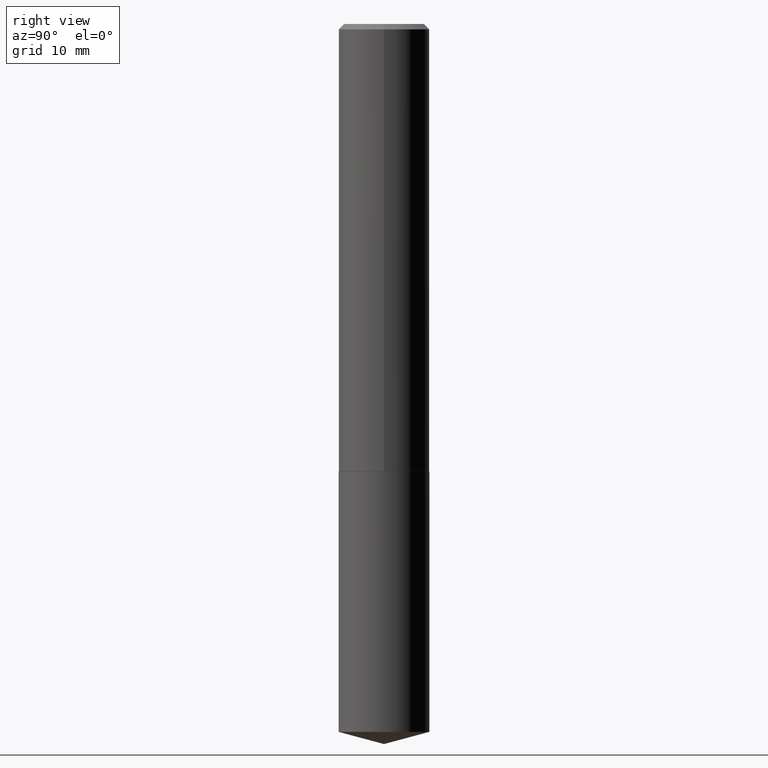
[diagram: clean part render]
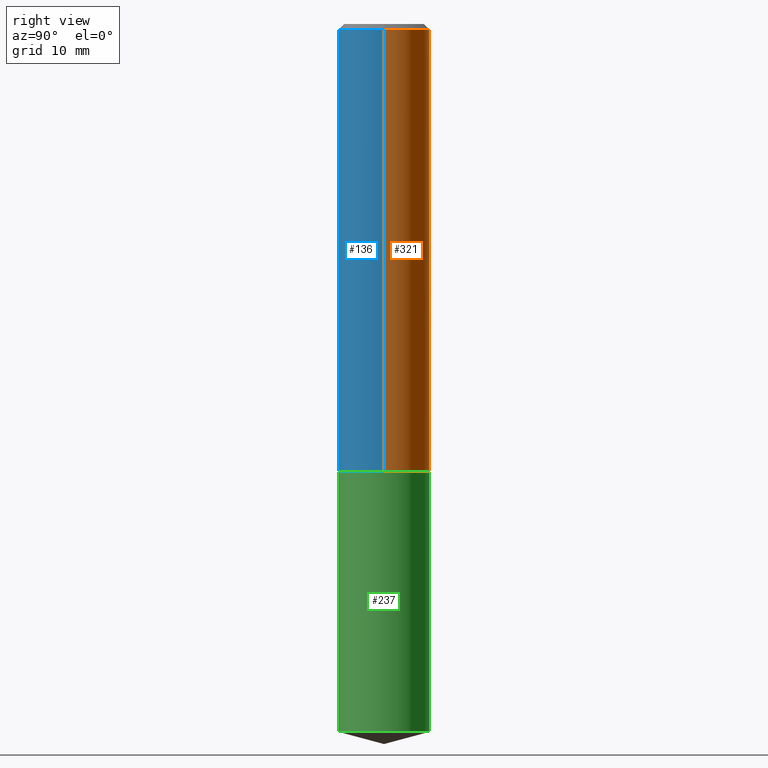
[diagram: same view with three faces highlighted in distinct colors, each labeled with its STEP entity id]
A machine part, right view with three faces highlighted in distinct colors.
Their STEP definitions:

[orange] entity #321 — the highlighted cylindrical surface (partial cylindrical patch) has radius 6.7501 mm, axis along (-0, 0, 1).
#12 = CARTESIAN_POINT ( 'NONE',  ( 6.401259147070212571E-29, -9.139301552555818359E-15, -2.617599999999999927 ) ) ;
#22 = ORIENTED_EDGE ( 'NONE', *, *, #137, .T. ) ;
#24 = VERTEX_POINT ( 'NONE', #390 ) ;
#35 = EDGE_CURVE ( 'NONE', #258, #24, #117, .T. ) ;
#62 = VERTEX_POINT ( 'NONE', #204 ) ;
#63 = CARTESIAN_POINT ( 'NONE',  ( 0.2657500000000001528, -1.855722331595126530E-15, 1.295843978167770573E-29 ) ) ;
#69 = CARTESIAN_POINT ( 'NONE',  ( -0.2657500000000001528, 1.888267320282467329E-15, -1.307207000235242070E-29 ) ) ;
#77 = DIRECTION ( 'NONE',  ( -2.445468806185136597E-29, 3.491481338843145583E-15, 1.000000000000000000 ) ) ;
#105 = DIRECTION ( 'NONE',  ( -2.445468806185136877E-29, 3.491481338843145188E-15, 1.000000000000000000 ) ) ;
#109 = ORIENTED_EDGE ( 'NONE', *, *, #35, .F. ) ;
#117 = LINE ( 'NONE', #63, #181 ) ;
#127 = DIRECTION ( 'NONE',  ( -2.445468806185136597E-29, 3.491481338843145583E-15, 1.000000000000000000 ) ) ;
#130 = CARTESIAN_POINT ( 'NONE',  ( -0.2657499999999999862, -2.735937851914864823E-15, -0.03125000000000020123 ) ) ;
#137 = EDGE_CURVE ( 'NONE', #258, #62, #370, .T. ) ;
#148 = EDGE_CURVE ( 'NONE', #24, #196, #287, .T. ) ;
#149 = DIRECTION ( 'NONE',  ( -2.445468806185136877E-29, 3.491481338843145188E-15, 1.000000000000000000 ) ) ;
#159 = DIRECTION ( 'NONE',  ( 1.000000000000000000, -6.982962677686262766E-15, 0.000000000000000000 ) ) ;
#166 = CYLINDRICAL_SURFACE ( 'NONE', #348, 0.2657500000000001528 ) ;
#171 = EDGE_CURVE ( 'NONE', #62, #196, #272, .T. ) ;
#181 = VECTOR ( 'NONE', #149, 39.37007874015748143 ) ;
#187 = CARTESIAN_POINT ( 'NONE',  ( 0.2657500000000003193, -1.099502388415094371E-14, -2.617599999999999927 ) ) ;
#192 = DIRECTION ( 'NONE',  ( 1.000000000000000000, -6.982962677686266711E-15, 4.876176775795935232E-29 ) ) ;
#195 = ORIENTED_EDGE ( 'NONE', *, *, #148, .F. ) ;
#196 = VERTEX_POINT ( 'NONE', #130 ) ;
#200 = AXIS2_PLACEMENT_3D ( 'NONE', #268, #77, #339 ) ;
#204 = CARTESIAN_POINT ( 'NONE',  ( -0.2657500000000003193, -7.251034232273349452E-15, -2.617599999999999927 ) ) ;
#258 = VERTEX_POINT ( 'NONE', #187 ) ;
#260 = ORIENTED_EDGE ( 'NONE', *, *, #171, .T. ) ;
#268 = CARTESIAN_POINT ( 'NONE',  ( 7.642090019328601786E-31, -1.091087918388490144E-16, -0.03125000000000020123 ) ) ;
#272 = LINE ( 'NONE', #69, #369 ) ;
#287 = CIRCLE ( 'NONE', #200, 0.2657499999999999862 ) ;
#313 = AXIS2_PLACEMENT_3D ( 'NONE', #12, #127, #159 ) ;
#321 = ADVANCED_FACE ( 'NONE', ( #374 ), #166, .T. ) ;
#339 = DIRECTION ( 'NONE',  ( 1.000000000000000000, -6.982962677686266711E-15, 0.000000000000000000 ) ) ;
#340 = DIRECTION ( 'NONE',  ( -2.445468806185136597E-29, 3.491481338843145583E-15, 1.000000000000000000 ) ) ;
#348 = AXIS2_PLACEMENT_3D ( 'NONE', #372, #340, #192 ) ;
#369 = VECTOR ( 'NONE', #105, 39.37007874015748143 ) ;
#370 = CIRCLE ( 'NONE', #313, 0.2657500000000003193 ) ;
#372 = CARTESIAN_POINT ( 'NONE',  ( 0.000000000000000000, 0.000000000000000000, 0.000000000000000000 ) ) ;
#373 = EDGE_LOOP ( 'NONE', ( #22, #260, #195, #109 ) ) ;
#374 = FACE_OUTER_BOUND ( 'NONE', #373, .T. ) ;
#390 = CARTESIAN_POINT ( 'NONE',  ( 0.2657499999999999862, -1.964831123433974447E-15, -0.03125000000000020123 ) ) ;

[blue] entity #136 — the highlighted cylindrical surface (partial cylindrical patch) has radius 6.7501 mm, axis along (-0, 0, 1).
#3 = EDGE_LOOP ( 'NONE', ( #33, #278, #81, #119 ) ) ;
#15 = DIRECTION ( 'NONE',  ( -2.445468806185136597E-29, 3.491481338843145583E-15, 1.000000000000000000 ) ) ;
#20 = EDGE_CURVE ( 'NONE', #196, #24, #80, .T. ) ;
#24 = VERTEX_POINT ( 'NONE', #390 ) ;
#28 = DIRECTION ( 'NONE',  ( 1.000000000000000000, -6.982962677686262766E-15, 0.000000000000000000 ) ) ;
#31 = DIRECTION ( 'NONE',  ( -2.445468806185136597E-29, 3.491481338843145583E-15, 1.000000000000000000 ) ) ;
#33 = ORIENTED_EDGE ( 'NONE', *, *, #171, .F. ) ;
#35 = EDGE_CURVE ( 'NONE', #258, #24, #117, .T. ) ;
#62 = VERTEX_POINT ( 'NONE', #204 ) ;
#63 = CARTESIAN_POINT ( 'NONE',  ( 0.2657500000000001528, -1.855722331595126530E-15, 1.295843978167770573E-29 ) ) ;
#69 = CARTESIAN_POINT ( 'NONE',  ( -0.2657500000000001528, 1.888267320282467329E-15, -1.307207000235242070E-29 ) ) ;
#75 = AXIS2_PLACEMENT_3D ( 'NONE', #325, #31, #146 ) ;
#80 = CIRCLE ( 'NONE', #75, 0.2657499999999999862 ) ;
#81 = ORIENTED_EDGE ( 'NONE', *, *, #35, .T. ) ;
#105 = DIRECTION ( 'NONE',  ( -2.445468806185136877E-29, 3.491481338843145188E-15, 1.000000000000000000 ) ) ;
#108 = AXIS2_PLACEMENT_3D ( 'NONE', #371, #15, #219 ) ;
#117 = LINE ( 'NONE', #63, #181 ) ;
#119 = ORIENTED_EDGE ( 'NONE', *, *, #20, .F. ) ;
#130 = CARTESIAN_POINT ( 'NONE',  ( -0.2657499999999999862, -2.735937851914864823E-15, -0.03125000000000020123 ) ) ;
#136 = ADVANCED_FACE ( 'NONE', ( #365 ), #240, .T. ) ;
#146 = DIRECTION ( 'NONE',  ( 1.000000000000000000, -6.982962677686266711E-15, 0.000000000000000000 ) ) ;
#149 = DIRECTION ( 'NONE',  ( -2.445468806185136877E-29, 3.491481338843145188E-15, 1.000000000000000000 ) ) ;
#171 = EDGE_CURVE ( 'NONE', #62, #196, #272, .T. ) ;
#173 = DIRECTION ( 'NONE',  ( -2.445468806185136597E-29, 3.491481338843145583E-15, 1.000000000000000000 ) ) ;
#181 = VECTOR ( 'NONE', #149, 39.37007874015748143 ) ;
#182 = AXIS2_PLACEMENT_3D ( 'NONE', #290, #173, #28 ) ;
#187 = CARTESIAN_POINT ( 'NONE',  ( 0.2657500000000003193, -1.099502388415094371E-14, -2.617599999999999927 ) ) ;
#196 = VERTEX_POINT ( 'NONE', #130 ) ;
#204 = CARTESIAN_POINT ( 'NONE',  ( -0.2657500000000003193, -7.251034232273349452E-15, -2.617599999999999927 ) ) ;
#219 = DIRECTION ( 'NONE',  ( 1.000000000000000000, -6.982962677686266711E-15, 4.876176775795935232E-29 ) ) ;
#240 = CYLINDRICAL_SURFACE ( 'NONE', #108, 0.2657500000000001528 ) ;
#258 = VERTEX_POINT ( 'NONE', #187 ) ;
#272 = LINE ( 'NONE', #69, #369 ) ;
#278 = ORIENTED_EDGE ( 'NONE', *, *, #383, .T. ) ;
#290 = CARTESIAN_POINT ( 'NONE',  ( 6.401259147070212571E-29, -9.139301552555818359E-15, -2.617599999999999927 ) ) ;
#325 = CARTESIAN_POINT ( 'NONE',  ( 7.642090019328601786E-31, -1.091087918388490144E-16, -0.03125000000000020123 ) ) ;
#365 = FACE_OUTER_BOUND ( 'NONE', #3, .T. ) ;
#369 = VECTOR ( 'NONE', #105, 39.37007874015748143 ) ;
#371 = CARTESIAN_POINT ( 'NONE',  ( 0.000000000000000000, 0.000000000000000000, 0.000000000000000000 ) ) ;
#378 = CIRCLE ( 'NONE', #182, 0.2657500000000003193 ) ;
#383 = EDGE_CURVE ( 'NONE', #62, #258, #378, .T. ) ;
#390 = CARTESIAN_POINT ( 'NONE',  ( 0.2657499999999999862, -1.964831123433974447E-15, -0.03125000000000020123 ) ) ;

[green] entity #237 — the highlighted cylindrical surface (partial cylindrical patch) has radius 6.75 mm, axis along (-0, 0, 1).
#18 = VERTEX_POINT ( 'NONE', #172 ) ;
#26 = CARTESIAN_POINT ( 'NONE',  ( -1.855722331595061055E-15, -0.2657500000000091456, -2.618099999999999206 ) ) ;
#32 = DIRECTION ( 'NONE',  ( -2.445613187087085095E-29, 3.491274577173904223E-15, 1.000000000000000000 ) ) ;
#42 = DIRECTION ( 'NONE',  ( -2.445613187087085095E-29, 3.491274577173904618E-15, 1.000000000000000000 ) ) ;
#46 = CARTESIAN_POINT ( 'NONE',  ( 6.402481881473307615E-29, -9.141047293225240652E-15, -2.618100000000000094 ) ) ;
#48 = EDGE_CURVE ( 'NONE', #51, #198, #327, .T. ) ;
#51 = VERTEX_POINT ( 'NONE', #26 ) ;
#52 = EDGE_LOOP ( 'NONE', ( #175, #83, #201, #121 ) ) ;
#72 = CARTESIAN_POINT ( 'NONE',  ( 1.012786611242790228E-28, -1.445927967944650304E-14, -4.141392502111430396 ) ) ;
#76 = DIRECTION ( 'NONE',  ( -2.445613187087085095E-29, 3.491274577173904618E-15, 1.000000000000000000 ) ) ;
#83 = ORIENTED_EDGE ( 'NONE', *, *, #113, .T. ) ;
#100 = CARTESIAN_POINT ( 'NONE',  ( 1.888267320282567515E-15, 0.2657499999999856088, -4.141392502111431284 ) ) ;
#113 = EDGE_CURVE ( 'NONE', #222, #198, #216, .T. ) ;
#121 = ORIENTED_EDGE ( 'NONE', *, *, #380, .F. ) ;
#123 = CARTESIAN_POINT ( 'NONE',  ( 1.888267320282530044E-15, 0.2657499999999908269, -2.618100000000001426 ) ) ;
#133 = VECTOR ( 'NONE', #299, 39.37007874015748143 ) ;
#134 = CYLINDRICAL_SURFACE ( 'NONE', #319, 0.2657499999999999862 ) ;
#162 = DIRECTION ( 'NONE',  ( -6.982962677686266711E-15, -1.000000000000000000, 4.111906669673397387E-15 ) ) ;
#172 = CARTESIAN_POINT ( 'NONE',  ( -1.855722331595024373E-15, -0.2657500000000144746, -4.141392502111429508 ) ) ;
#175 = ORIENTED_EDGE ( 'NONE', *, *, #253, .T. ) ;
#191 = CARTESIAN_POINT ( 'NONE',  ( 1.888267320282567515E-15, 0.2657499999999908824, -2.618100000000001426 ) ) ;
#198 = VERTEX_POINT ( 'NONE', #191 ) ;
#201 = ORIENTED_EDGE ( 'NONE', *, *, #48, .F. ) ;
#202 = DIRECTION ( 'NONE',  ( -6.982962677686266711E-15, -1.000000000000000000, 4.111906669673397387E-15 ) ) ;
#216 = LINE ( 'NONE', #123, #133 ) ;
#217 = VECTOR ( 'NONE', #32, 39.37007874015748143 ) ;
#222 = VERTEX_POINT ( 'NONE', #100 ) ;
#227 = AXIS2_PLACEMENT_3D ( 'NONE', #233, #236, #202 ) ;
#233 = CARTESIAN_POINT ( 'NONE',  ( 6.402481881473307615E-29, -9.141047293225240652E-15, -2.618100000000000094 ) ) ;
#236 = DIRECTION ( 'NONE',  ( -2.445613187087085095E-29, 3.491274577173904618E-15, 1.000000000000000000 ) ) ;
#237 = ADVANCED_FACE ( 'NONE', ( #336 ), #134, .T. ) ;
#253 = EDGE_CURVE ( 'NONE', #18, #222, #262, .T. ) ;
#262 = CIRCLE ( 'NONE', #377, 0.2657499999999999862 ) ;
#299 = DIRECTION ( 'NONE',  ( -2.445613187087085095E-29, 3.491274577173904223E-15, 1.000000000000000000 ) ) ;
#315 = CARTESIAN_POINT ( 'NONE',  ( -1.855722331595061055E-15, -0.2657500000000091456, -2.618099999999999206 ) ) ;
#317 = LINE ( 'NONE', #315, #217 ) ;
#319 = AXIS2_PLACEMENT_3D ( 'NONE', #46, #42, #368 ) ;
#327 = CIRCLE ( 'NONE', #227, 0.2657499999999999862 ) ;
#336 = FACE_OUTER_BOUND ( 'NONE', #52, .T. ) ;
#368 = DIRECTION ( 'NONE',  ( -6.982962677686266711E-15, -1.000000000000000000, 4.111906669673397387E-15 ) ) ;
#377 = AXIS2_PLACEMENT_3D ( 'NONE', #72, #76, #162 ) ;
#380 = EDGE_CURVE ( 'NONE', #18, #51, #317, .T. ) ;